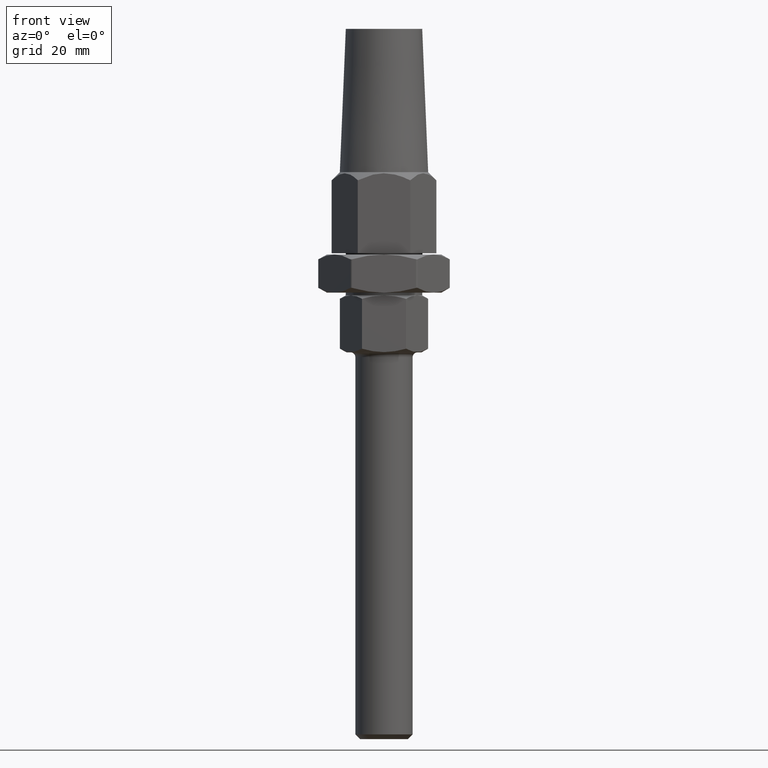
[diagram: clean part render]
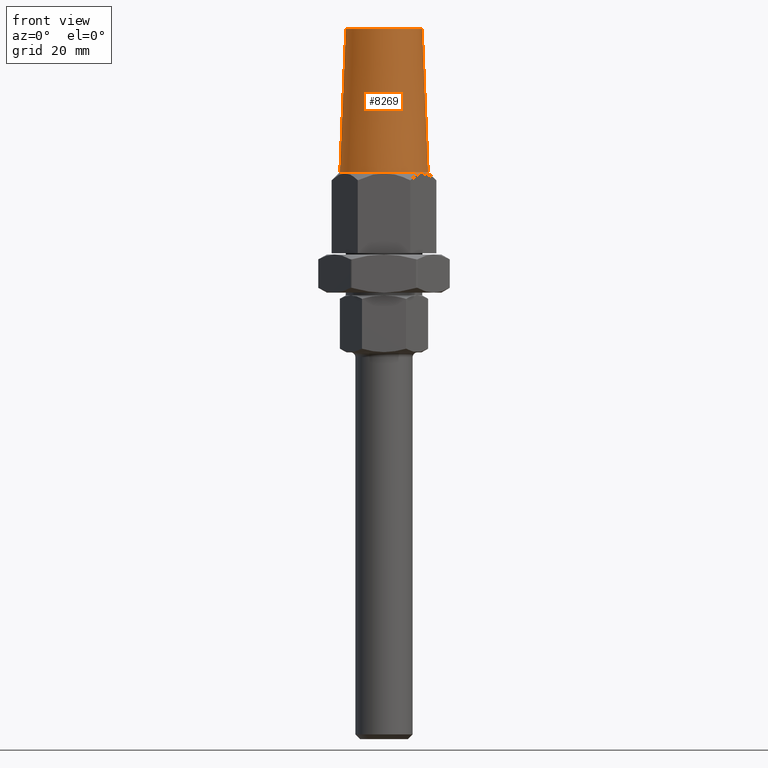
[diagram: same view with one face highlighted and labeled with its STEP entity id]
A machine part, front view. The second image highlights one B-rep face of the part: STEP entity #8269.
In plain terms, the highlighted conical surface has half-angle 2.386 deg.
Its self-contained STEP definition (entity closure, byte-faithful):
#228 = AXIS2_PLACEMENT_3D ( 'NONE', #1585, #11678, #11498 ) ;
#268 = CARTESIAN_POINT ( 'NONE',  ( -7.999999999999996400, 0.0000000000000000000, 47.00000000000000000 ) ) ;
#811 = ORIENTED_EDGE ( 'NONE', *, *, #872, .F. ) ;
#872 = EDGE_CURVE ( 'NONE', #1341, #15947, #13071, .T. ) ;
#1032 = DIRECTION ( 'NONE',  ( -1.000000000000000000, 0.0000000000000000000, 0.0000000000000000000 ) ) ;
#1341 = VERTEX_POINT ( 'NONE', #6211 ) ;
#1478 = VERTEX_POINT ( 'NONE', #13539 ) ;
#1585 = CARTESIAN_POINT ( 'NONE',  ( 3.896954326443487200E-015, 0.0000000000000000000, 47.00000000000000000 ) ) ;
#1997 = DIRECTION ( 'NONE',  ( 0.04163054471218118100, 5.098271332853360400E-018, -0.9991330730923518900 ) ) ;
#3557 = AXIS2_PLACEMENT_3D ( 'NONE', #16781, #6614, #11050 ) ;
#5005 = LINE ( 'NONE', #13669, #8650 ) ;
#5256 = CONICAL_SURFACE ( 'NONE', #3557, 8.000000000000000000, 0.04164257909858840700 ) ;
#6211 = CARTESIAN_POINT ( 'NONE',  ( 9.250000000000000000, 1.132798289211301500E-015, 17.00000000000000000 ) ) ;
#6614 = DIRECTION ( 'NONE',  ( -1.309466755803651800E-016, -0.0000000000000000000, -1.000000000000000000 ) ) ;
#6949 = CARTESIAN_POINT ( 'NONE',  ( -7.999999999999996400, 0.0000000000000000000, 47.00000000000000000 ) ) ;
#8269 = ADVANCED_FACE ( 'NONE', ( #13374 ), #5256, .T. ) ;
#8299 = DIRECTION ( 'NONE',  ( 1.849761233380496100E-018, -0.0000000000000000000, -1.000000000000000000 ) ) ;
#8437 = DIRECTION ( 'NONE',  ( -0.04163054471218144400, 0.0000000000000000000, -0.9991330730923518900 ) ) ;
#8650 = VECTOR ( 'NONE', #1997, 1000.000000000000200 ) ;
#8766 = AXIS2_PLACEMENT_3D ( 'NONE', #15685, #8299, #1032 ) ;
#9278 = VERTEX_POINT ( 'NONE', #268 ) ;
#9559 = CARTESIAN_POINT ( 'NONE',  ( -9.250000000000000000, 0.0000000000000000000, 17.00000000000000000 ) ) ;
#9607 = ORIENTED_EDGE ( 'NONE', *, *, #12342, .T. ) ;
#10467 = EDGE_CURVE ( 'NONE', #1478, #9278, #16492, .T. ) ;
#10498 = LINE ( 'NONE', #6949, #13873 ) ;
#11050 = DIRECTION ( 'NONE',  ( -1.000000000000000000, 0.0000000000000000000, 0.0000000000000000000 ) ) ;
#11498 = DIRECTION ( 'NONE',  ( -1.000000000000000000, 0.0000000000000000000, 0.0000000000000000000 ) ) ;
#11631 = EDGE_LOOP ( 'NONE', ( #14582, #17027, #9607, #811 ) ) ;
#11678 = DIRECTION ( 'NONE',  ( -1.309466755803651800E-016, -0.0000000000000000000, -1.000000000000000000 ) ) ;
#12342 = EDGE_CURVE ( 'NONE', #9278, #15947, #10498, .T. ) ;
#13071 = CIRCLE ( 'NONE', #8766, 9.249999999999998200 ) ;
#13374 = FACE_OUTER_BOUND ( 'NONE', #11631, .T. ) ;
#13539 = CARTESIAN_POINT ( 'NONE',  ( 8.000000000000003600, 1.056257864264592000E-015, 47.00000000000000000 ) ) ;
#13669 = CARTESIAN_POINT ( 'NONE',  ( 8.000000000000003600, 9.797174393178825700E-016, 47.00000000000000000 ) ) ;
#13873 = VECTOR ( 'NONE', #8437, 1000.000000000000200 ) ;
#14582 = ORIENTED_EDGE ( 'NONE', *, *, #17387, .F. ) ;
#15685 = CARTESIAN_POINT ( 'NONE',  ( -3.144594096746843300E-017, 0.0000000000000000000, 17.00000000000000000 ) ) ;
#15947 = VERTEX_POINT ( 'NONE', #9559 ) ;
#16492 = CIRCLE ( 'NONE', #228, 8.000000000000000000 ) ;
#16781 = CARTESIAN_POINT ( 'NONE',  ( 3.896954326443487200E-015, 0.0000000000000000000, 47.00000000000000000 ) ) ;
#17027 = ORIENTED_EDGE ( 'NONE', *, *, #10467, .T. ) ;
#17387 = EDGE_CURVE ( 'NONE', #1478, #1341, #5005, .T. ) ;